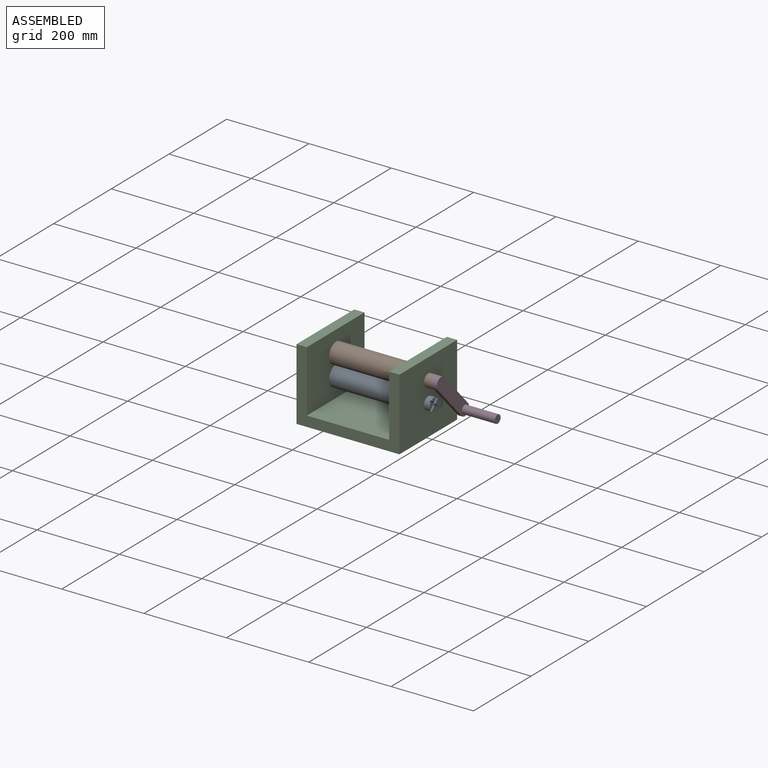
[diagram: assembled view]
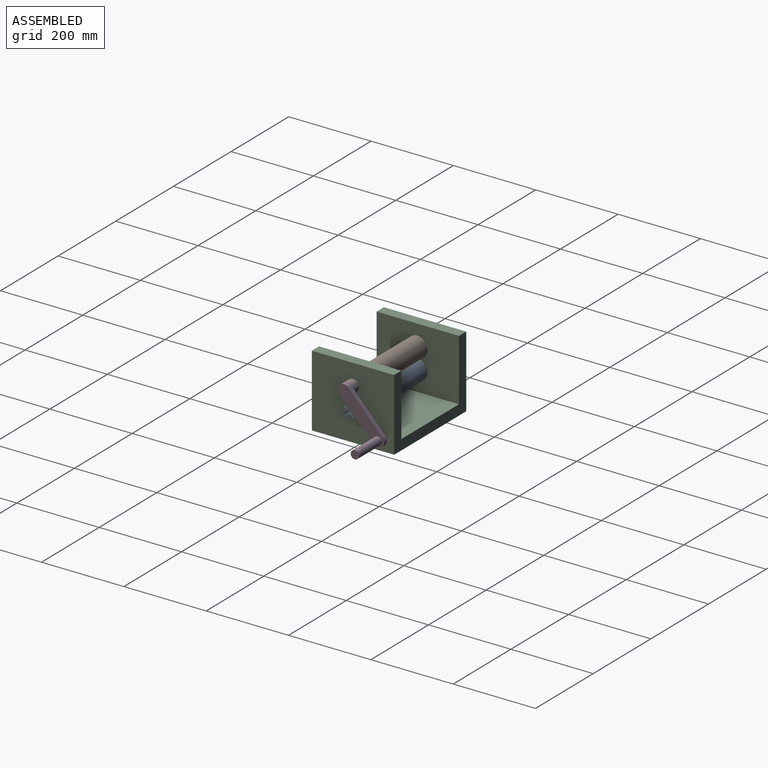
[diagram: assembled view, second angle]
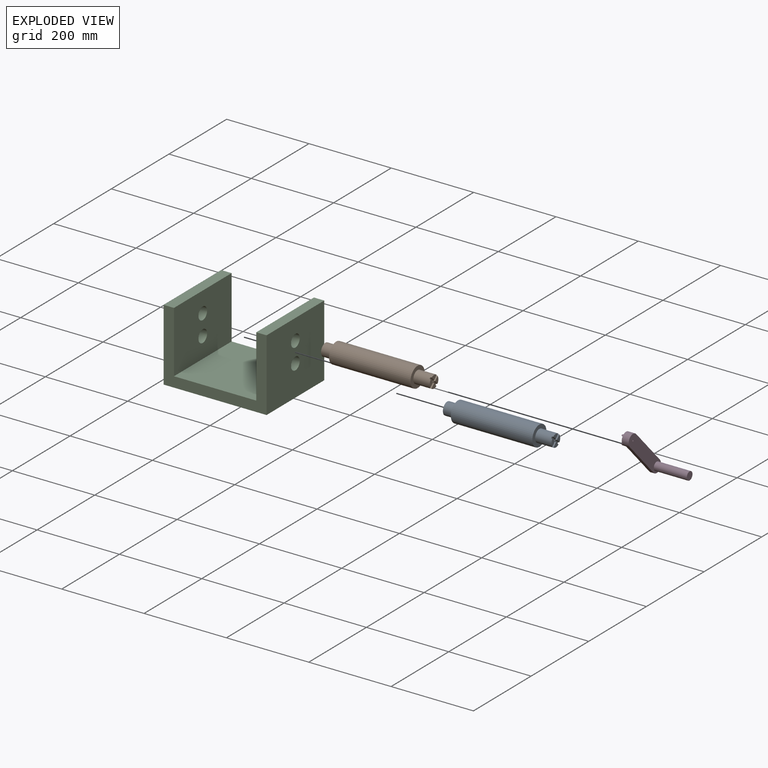
[diagram: exploded view]
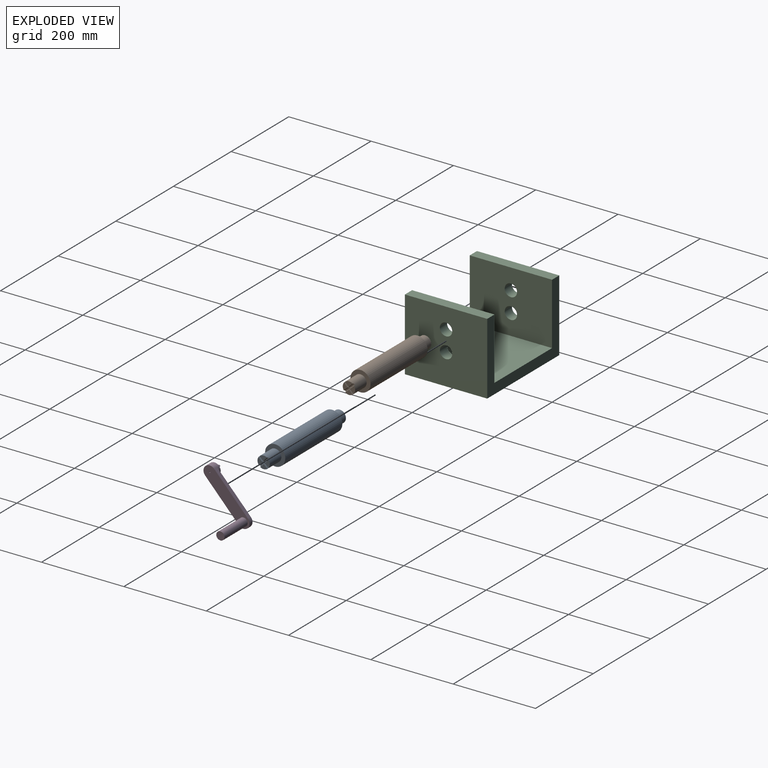
[diagram: exploded view, second angle]
ASSEMBLY  parts=4 mates=3
PART A: 21 faces, bbox 264.1x49x49 mm
  f0: cylinder r=14.97mm len=40.05mm, axis (-1,0,0), area 3720.2mm2, adj f1,f2,f3,f5,f7,f10,f11,f12
  f1: plane 12.27x12.27mm, normal (1,0,0), area 107.9mm2, adj f0,f12,f14
  f2: plane 12.27x12.27mm, normal (1,0,0), area 107.9mm2, adj f0,f16,f17
  f3: plane 12.27x12.27mm, normal (1,0,0), area 107.9mm2, adj f0,f11,f13
  f4: cylinder r=24.5mm len=198mm, axis (-1,0,0), area 30479.7mm2, adj f5,f6
  f5: plane 49x49mm, normal (1,0,0), area 1181.2mm2, adj f0,f4
  f6: plane 49x49mm, normal (-1,0,0), area 1181.2mm2, adj f4,f8
  f7: plane 12.27x12.27mm, normal (1,0,0), area 107.9mm2, adj f0,f15,f18
  f8: cylinder r=14.97mm len=29.95mm, axis (1,0,0), area 2446.4mm2, adj f6,f9
  f9: plane 29.95x29.95mm, normal (-1,0,0), area 704.5mm2, adj f8
  f10: plane 29.95x29.95mm, normal (1,0,0), area 163.3mm2, adj f0,f11,f12,f13,f14,f15,f16,f17
  f11: plane 13.41x3.01mm, normal (0.32,-0.95,0), area 40.6mm2, adj f0,f3,f10,f13
  f12: plane 13.41x3.01mm, normal (0.32,0.95,0), area 40.6mm2, adj f0,f1,f10,f14
  f13: plane 13.41x3.01mm, normal (0.32,0,-0.95), area 40.6mm2, adj f0,f3,f10,f11
  f14: plane 13.41x3.01mm, normal (0.32,0,-0.95), area 40.6mm2, adj f0,f1,f10,f12
  f15: plane 13.41x3.01mm, normal (0.32,-0.95,0), area 40.6mm2, adj f0,f7,f10,f18
  f16: plane 13.41x3.01mm, normal (0.32,0,0.95), area 40.6mm2, adj f0,f2,f10,f17
  f17: plane 13.41x3.01mm, normal (0.32,0.95,0), area 40.6mm2, adj f0,f2,f10,f16
  f18: plane 13.41x3.01mm, normal (0.32,0,0.95), area 40.6mm2, adj f0,f7,f10,f15
  f19: cylinder r=1.5mm len=25mm, axis (1,0,0), area 235.6mm2, adj f10,f20
  f20: plane 3x3mm, normal (1,0,0), area 7.1mm2, adj f19
PART B: same geometry as A
PART C: 14 faces, bbox 250x200x175 mm
  f0: plane 200x200mm, normal (0,0,1), area 40000mm2, adj f1,f3,f6,f8
  f1: plane 250x175mm, normal (0,1,0), area 13750mm2, adj f0,f2,f4,f5,f6,f7,f8,f9
  f2: plane 200x175mm, normal (-1,0,0), area 33586.3mm2, adj f1,f3,f5,f7,f12,f13
  f3: plane 250x175mm, normal (0,-1,0), area 13750mm2, adj f0,f2,f4,f5,f6,f7,f8,f9
  f4: plane 200x175mm, normal (1,0,0), area 33586.3mm2, adj f1,f3,f5,f9,f10,f11
  f5: plane 250x200mm, normal (0,0,-1), area 50000mm2, adj f1,f2,f3,f4
  f6: plane 200x150mm, normal (1,0,0), area 28586.3mm2, adj f0,f1,f3,f7,f12,f13
  f7: plane 200x25mm, normal (0,0,1), area 5000mm2, adj f1,f2,f3,f6
  f8: plane 200x150mm, normal (-1,0,0), area 28586.3mm2, adj f0,f1,f3,f9,f10,f11
  f9: plane 200x25mm, normal (0,0,1), area 5000mm2, adj f1,f3,f4,f8
  f10: cylinder r=15mm len=30mm, axis (1,0,0), area 2356.2mm2, adj f4,f8
  f11: cylinder r=15mm len=30mm, axis (1,0,0), area 2356.2mm2, adj f4,f8
  f12: cylinder r=15mm len=30mm, axis (1,0,0), area 2356.2mm2, adj f2,f6
  f13: cylinder r=15mm len=30mm, axis (1,0,0), area 2356.2mm2, adj f2,f6
PART D: 24 faces, bbox 100x150x30 mm
  f0: plane 29.95x29.95mm, normal (-1,0,0), area 163.3mm2, adj f1,f3,f4,f6,f7,f9,f10,f12
  f1: cylinder r=14.97mm len=29.95mm, axis (1,0,0), area 706.8mm2, adj f0,f2,f3,f4,f5,f6,f7,f8
  f2: plane 12.27x12.27mm, normal (-1,0,0), area 107.9mm2, adj f1,f3,f4
  f3: plane 13.41x3.01mm, normal (-0.32,0,-0.95), area 40.6mm2, adj f0,f1,f2,f4
  f4: plane 13.41x3.01mm, normal (-0.32,0.95,0), area 40.6mm2, adj f0,f1,f2,f3
  f5: plane 12.27x12.27mm, normal (-1,0,0), area 107.9mm2, adj f1,f6,f7
  f6: plane 13.41x3.01mm, normal (-0.32,0.95,0), area 40.6mm2, adj f0,f1,f5,f7
  f7: plane 13.41x3.01mm, normal (-0.32,0,0.95), area 40.6mm2, adj f0,f1,f5,f6
  f8: plane 12.27x12.27mm, normal (-1,0,0), area 107.9mm2, adj f1,f9,f10
  f9: plane 13.41x3.01mm, normal (-0.32,-0.95,0), area 40.6mm2, adj f0,f1,f8,f10
  f10: plane 13.41x3.01mm, normal (-0.32,0,-0.95), area 40.6mm2, adj f0,f1,f8,f9
  f11: plane 12.27x12.27mm, normal (-1,0,0), area 107.9mm2, adj f1,f12,f13
  f12: plane 13.41x3.01mm, normal (-0.32,-0.95,0), area 40.6mm2, adj f0,f1,f11,f13
  f13: plane 13.41x3.01mm, normal (-0.32,0,0.95), area 40.6mm2, adj f0,f1,f11,f12
  f14: cylinder r=1.5mm len=20mm, axis (1,0,0), area 188.5mm2, adj f0,f15
  f15: plane 150x30mm, normal (1,0,0), area 3985.6mm2, adj f14,f16,f17,f19,f20,f21,f22
  f16: plane 120x10mm, normal (0,0,-1), area 1200mm2, adj f15,f18,f19,f21
  f17: plane 120.02x10mm, normal (0,0,1), area 1200mm2, adj f15,f18,f20,f21
  f18: plane 150x30mm, normal (-1,0,0), area 3602.5mm2, adj f1,f16,f17,f19,f21
  f19: cylinder r=15mm len=15mm, axis (-1,0,0), area 235.6mm2, adj f15,f16,f18,f20
  f20: cylinder r=15mm len=15mm, axis (1,0,0), area 235.6mm2, adj f1,f15,f17,f19
  f21: cylinder r=15mm len=30mm, axis (-1,0,0), area 471.2mm2, adj f15,f16,f17,f18
  f22: cylinder r=10mm len=80mm, axis (-1,0,0), area 5026.5mm2, adj f15,f23
  f23: plane 20x20mm, normal (1,0,0), area 314.2mm2, adj f22
PLACE A rot(axis=(1,0,0),46.8deg) t=(-28.91,228.83,133.54)mm
PLACE B rot(axis=(-1,0,0),46.8deg) t=(-28.91,157.24,183.54)mm
PLACE C t=(59.33,192.36,92.17)mm fixed
PLACE D rot(axis=(-1,0,0),46.8deg) t=(-28.91,157.24,183.54)mm
MATE revolute C.f10 <-> A.f0  axis (-1,0,0) through (-54.91,193.03,167.17)mm
MATE revolute C.f11 <-> B.f0  axis (-1,0,0) through (-54.91,193.03,217.17)mm
MATE fastened B.f0 <-> D.f1  axis (1,0,0) through (206.14,193.03,217.17)mm
